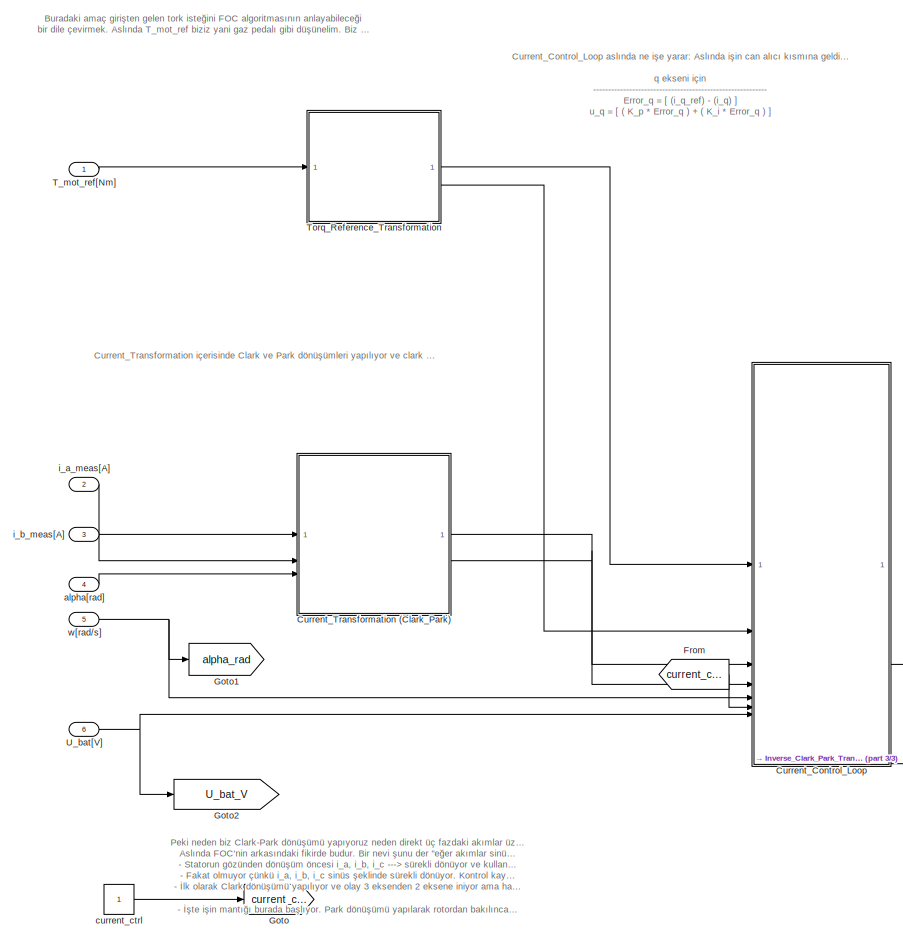
[diagram: root canvas - part 1/3, center side, full height]
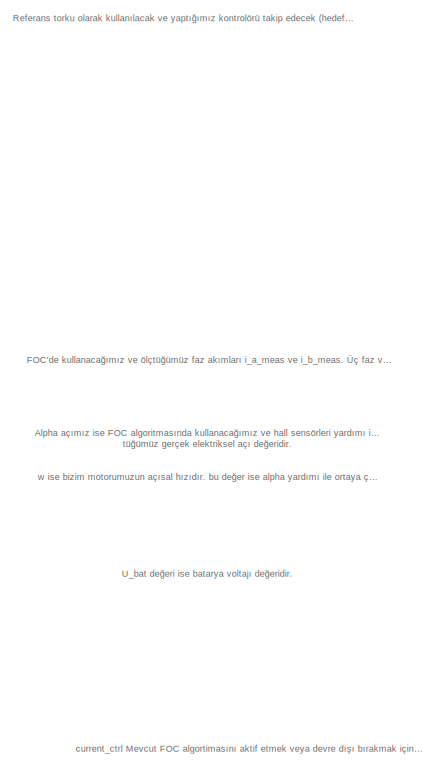
[diagram: root canvas - part 2/3, middle left region]
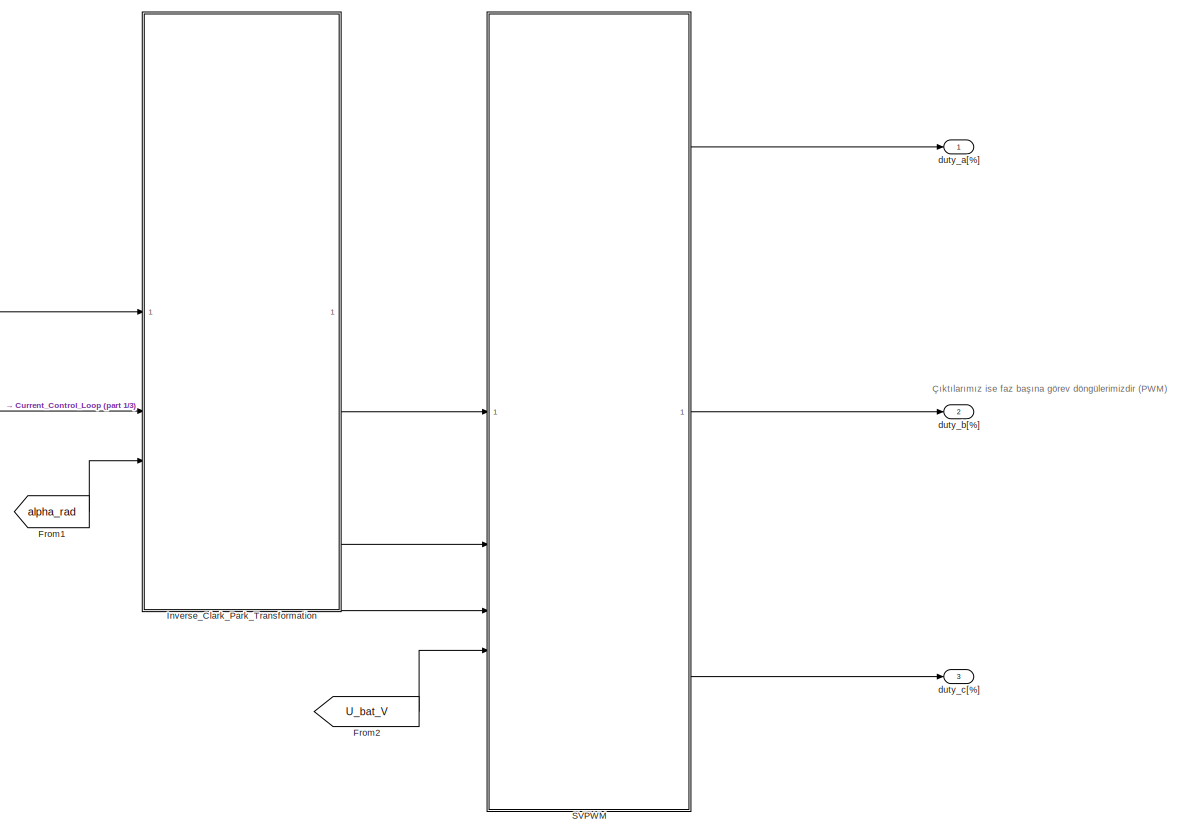
[diagram: root canvas - part 3/3, middle right region]
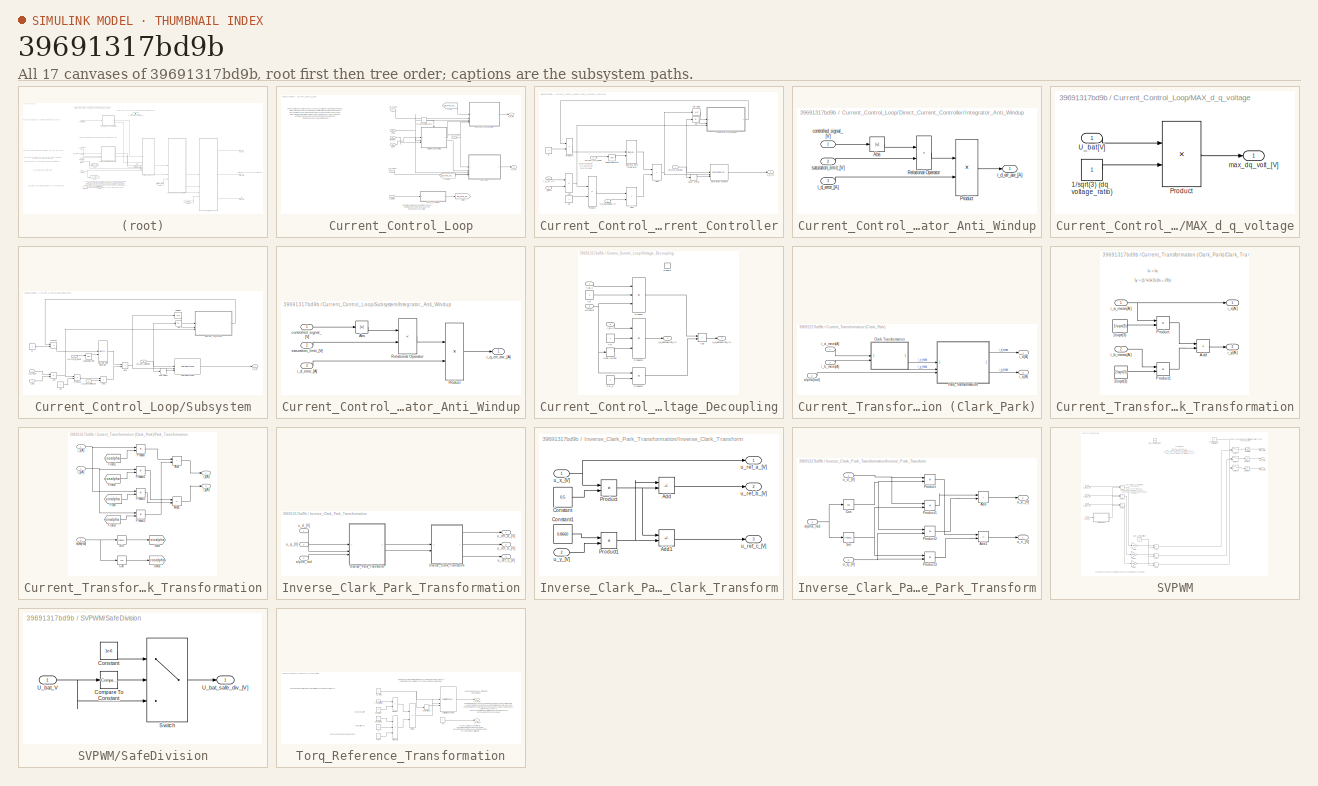
[diagram: thumbnail index - all 17 canvases of the model, root first then tree order]
MODEL slx_39691317bd9b
KIND model
CONFIG AbsTol = auto
CONFIG EnableMultiTasking = off
CONFIG FixedStep = auto
CONFIG MaxStep = auto
CONFIG MinStep = auto
CONFIG RelTol = 1e-3
CONFIG SampleTimeConstraint = Unconstrained
CONFIG SolverName = VariableStepAuto
CONFIG StartTime = 0.0
CONFIG StopTime = 10.0
BLOCK [SubSystem] Current_Control_Loop
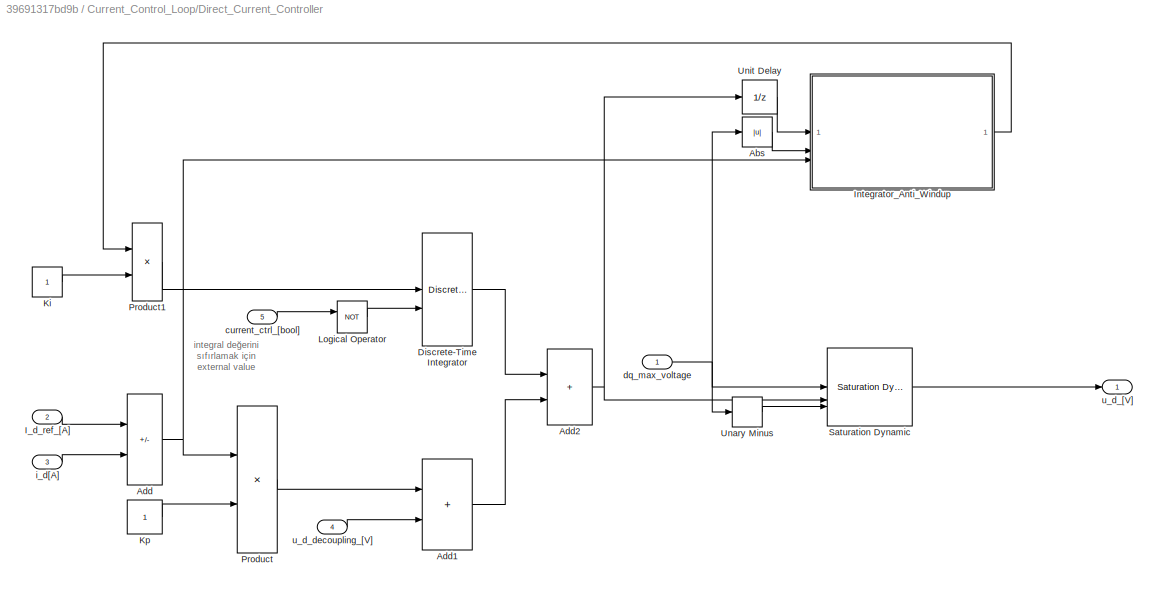
BLOCK [SubSystem] Current_Control_Loop/Direct_Current_Controller
BLOCK [Abs] Current_Control_Loop/Direct_Current_Controller/Abs
  SaturateOnIntegerOverflow = off
BLOCK [Sum] Current_Control_Loop/Direct_Current_Controller/Add
  IconShape = rectangular
  Inputs = +-
BLOCK [Sum] Current_Control_Loop/Direct_Current_Controller/Add1
  IconShape = rectangular
BLOCK [Sum] Current_Control_Loop/Direct_Current_Controller/Add2
  IconShape = rectangular
BLOCK [DiscreteIntegrator] Current_Control_Loop/Direct_Current_Controller/Discrete-Time Integrator
  ExternalReset = level
  ICPrevOutput = DiscIntNeverNeededParam
  ICPrevScaledInput = DiscIntNeverNeededParam
  InitialConditionSetting = Auto
  SampleTime = -1
BLOCK [Inport] Current_Control_Loop/Direct_Current_Controller/I_d_ref_[A]
  Port = 2
BLOCK [SubSystem] Current_Control_Loop/Direct_Current_Controller/Integrator_Anti_Windup
BLOCK [Abs] Current_Control_Loop/Direct_Current_Controller/Integrator_Anti_Windup/Abs
  SaturateOnIntegerOverflow = off
BLOCK [Product] Current_Control_Loop/Direct_Current_Controller/Integrator_Anti_Windup/Product
BLOCK [RelationalOperator] Current_Control_Loop/Direct_Current_Controller/Integrator_Anti_Windup/Relational Operator
  InputSameDT = off
  Operator = <
  OutDataTypeStr = boolean
  RndMeth = Simplest
BLOCK [Inport] Current_Control_Loop/Direct_Current_Controller/Integrator_Anti_Windup/controlled_signal_[V]
BLOCK [Outport] Current_Control_Loop/Direct_Current_Controller/Integrator_Anti_Windup/i_d_err_aw_[A]
BLOCK [Inport] Current_Control_Loop/Direct_Current_Controller/Integrator_Anti_Windup/i_d_error_[A]
  Port = 3
BLOCK [Inport] Current_Control_Loop/Direct_Current_Controller/Integrator_Anti_Windup/saturation_limit_[V]
  Port = 2
BLOCK [Constant] Current_Control_Loop/Direct_Current_Controller/Ki
BLOCK [Constant] Current_Control_Loop/Direct_Current_Controller/Kp
BLOCK [Logic] Current_Control_Loop/Direct_Current_Controller/Logical Operator
  AllPortsSameDT = off
  Operator = NOT
  OutDataTypeStr = boolean
BLOCK [Product] Current_Control_Loop/Direct_Current_Controller/Product
BLOCK [Product] Current_Control_Loop/Direct_Current_Controller/Product1
BLOCK [Reference] Current_Control_Loop/Direct_Current_Controller/Saturation Dynamic  REF=simulink/Discontinuities/Saturation
Dynamic
  SourceBlock = simulink/Discontinuities/Saturation\nDynamic
  SourceType = Saturation Dynamic
BLOCK [UnaryMinus] Current_Control_Loop/Direct_Current_Controller/Unary Minus
BLOCK [UnitDelay] Current_Control_Loop/Direct_Current_Controller/Unit Delay
  HasFrameUpgradeWarning = on
  SampleTime = -1
BLOCK [Inport] Current_Control_Loop/Direct_Current_Controller/current_ctrl_[bool]
  Port = 5
BLOCK [Inport] Current_Control_Loop/Direct_Current_Controller/dq_max_voltage
BLOCK [Inport] Current_Control_Loop/Direct_Current_Controller/i_d[A]
  Port = 3
BLOCK [Outport] Current_Control_Loop/Direct_Current_Controller/u_d_[V]
BLOCK [Inport] Current_Control_Loop/Direct_Current_Controller/u_d_decoupling_[V]
  Port = 4
BLOCK [From] Current_Control_Loop/From
  GotoTag = dq_max_voltage
BLOCK [From] Current_Control_Loop/From1
  GotoTag = dq_max_voltage
BLOCK [Goto] Current_Control_Loop/Goto
  GotoTag = dq_max_voltage
BLOCK [Inport] Current_Control_Loop/I_d_ref_[A]
BLOCK [SubSystem] Current_Control_Loop/MAX_d_q_voltage
BLOCK [Constant] Current_Control_Loop/MAX_d_q_voltage/1//sqrt(3) (dq_voltage_ratio)
BLOCK [Product] Current_Control_Loop/MAX_d_q_voltage/Product
BLOCK [Inport] Current_Control_Loop/MAX_d_q_voltage/U_bat[V]
BLOCK [Outport] Current_Control_Loop/MAX_d_q_voltage/max_dq_volt_[V]
BLOCK [SubSystem] Current_Control_Loop/Subsystem
BLOCK [Abs] Current_Control_Loop/Subsystem/Abs
  SaturateOnIntegerOverflow = off
BLOCK [Sum] Current_Control_Loop/Subsystem/Add
  IconShape = rectangular
  Inputs = +-
BLOCK [Sum] Current_Control_Loop/Subsystem/Add1
  IconShape = rectangular
BLOCK [Sum] Current_Control_Loop/Subsystem/Add2
  IconShape = rectangular
BLOCK [DiscreteIntegrator] Current_Control_Loop/Subsystem/Discrete-Time Integrator
  ExternalReset = level
  ICPrevOutput = DiscIntNeverNeededParam
  ICPrevScaledInput = DiscIntNeverNeededParam
  InitialConditionSetting = Auto
  SampleTime = -1
BLOCK [SubSystem] Current_Control_Loop/Subsystem/Integrator_Anti_Windup
BLOCK [Abs] Current_Control_Loop/Subsystem/Integrator_Anti_Windup/Abs
  SaturateOnIntegerOverflow = off
BLOCK [Product] Current_Control_Loop/Subsystem/Integrator_Anti_Windup/Product
BLOCK [RelationalOperator] Current_Control_Loop/Subsystem/Integrator_Anti_Windup/Relational Operator
  InputSameDT = off
  Operator = <
  OutDataTypeStr = boolean
  RndMeth = Simplest
BLOCK [Inport] Current_Control_Loop/Subsystem/Integrator_Anti_Windup/controlled_signal_[V]
BLOCK [Inport] Current_Control_Loop/Subsystem/Integrator_Anti_Windup/i_d_error_[A]
  Port = 3
BLOCK [Outport] Current_Control_Loop/Subsystem/Integrator_Anti_Windup/i_q_err_aw_[A]
BLOCK [Inport] Current_Control_Loop/Subsystem/Integrator_Anti_Windup/saturation_limit_[V]
  Port = 2
BLOCK [Constant] Current_Control_Loop/Subsystem/Ki
BLOCK [Constant] Current_Control_Loop/Subsystem/Kp
BLOCK [Logic] Current_Control_Loop/Subsystem/Logical Operator
  AllPortsSameDT = off
  Operator = NOT
  OutDataTypeStr = boolean
BLOCK [Product] Current_Control_Loop/Subsystem/Product
BLOCK [Product] Current_Control_Loop/Subsystem/Product1
BLOCK [Reference] Current_Control_Loop/Subsystem/Saturation Dynamic  REF=simulink/Discontinuities/Saturation
Dynamic
  SourceBlock = simulink/Discontinuities/Saturation\nDynamic
  SourceType = Saturation Dynamic
BLOCK [UnaryMinus] Current_Control_Loop/Subsystem/Unary Minus
BLOCK [UnitDelay] Current_Control_Loop/Subsystem/Unit Delay
  HasFrameUpgradeWarning = on
  SampleTime = -1
BLOCK [Inport] Current_Control_Loop/Subsystem/current_ctrl_[bool]
BLOCK [Inport] Current_Control_Loop/Subsystem/dq_max_voltage[V]
  Port = 5
BLOCK [Inport] Current_Control_Loop/Subsystem/i_q[A]
  Port = 3
BLOCK [Inport] Current_Control_Loop/Subsystem/i_q_ref_[A]
  Port = 4
BLOCK [Outport] Current_Control_Loop/Subsystem/u_q_[V]
BLOCK [Inport] Current_Control_Loop/Subsystem/u_q_decoupling_[V]
  Port = 2
BLOCK [Inport] Current_Control_Loop/U_bat[V]
  Port = 7
BLOCK [SubSystem] Current_Control_Loop/Voltage_Decoupling
BLOCK [Sum] Current_Control_Loop/Voltage_Decoupling/Add
  IconShape = rectangular
BLOCK [EnablePort] Current_Control_Loop/Voltage_Decoupling/Enable
BLOCK [Constant] Current_Control_Loop/Voltage_Decoupling/L_d
BLOCK [Constant] Current_Control_Loop/Voltage_Decoupling/L_q
BLOCK [Product] Current_Control_Loop/Voltage_Decoupling/Product
  Inputs = 3
BLOCK [Product] Current_Control_Loop/Voltage_Decoupling/Product1
  Inputs = 3
BLOCK [Product] Current_Control_Loop/Voltage_Decoupling/Product2
BLOCK [Constant] Current_Control_Loop/Voltage_Decoupling/Psi_p
BLOCK [UnaryMinus] Current_Control_Loop/Voltage_Decoupling/Unary Minus
BLOCK [Inport] Current_Control_Loop/Voltage_Decoupling/i_d[A]
BLOCK [Inport] Current_Control_Loop/Voltage_Decoupling/i_q[A]
  Port = 2
BLOCK [Outport] Current_Control_Loop/Voltage_Decoupling/u_d_decoupling_[V]
BLOCK [Outport] Current_Control_Loop/Voltage_Decoupling/u_q_decoupling_[V]
  Port = 2
BLOCK [Inport] Current_Control_Loop/Voltage_Decoupling/w[rad//s]
  Port = 3
BLOCK [Inport] Current_Control_Loop/current_ctrl_[bool]
  Port = 6
BLOCK [Constant] Current_Control_Loop/dc_decoupling_ena
BLOCK [Inport] Current_Control_Loop/i_d[A]
  Port = 3
BLOCK [Inport] Current_Control_Loop/i_q[A]
  Port = 4
BLOCK [Inport] Current_Control_Loop/i_q_ref_[A]
  Port = 2
BLOCK [Outport] Current_Control_Loop/u_d_[V]
BLOCK [Outport] Current_Control_Loop/u_q_[V]
  Port = 2
BLOCK [Inport] Current_Control_Loop/w[rad//s]
  Port = 5
BLOCK [SubSystem] Current_Transformation (Clark_Park)
  NameLocation = top
BLOCK [SubSystem] Current_Transformation (Clark_Park)/Clark_Transformation
BLOCK [Constant] Current_Transformation (Clark_Park)/Clark_Transformation/1//sqrt(3)
  OutDataTypeStr = single
  Value = 1/sqrt(3)
BLOCK [Constant] Current_Transformation (Clark_Park)/Clark_Transformation/2//sqrt(3)
  OutDataTypeStr = single
  Value = 2/sqrt(3)
BLOCK [Sum] Current_Transformation (Clark_Park)/Clark_Transformation/Add
  IconShape = rectangular
BLOCK [Product] Current_Transformation (Clark_Park)/Clark_Transformation/Product
BLOCK [Product] Current_Transformation (Clark_Park)/Clark_Transformation/Product1
BLOCK [Inport] Current_Transformation (Clark_Park)/Clark_Transformation/i_a_meas[A]
BLOCK [Inport] Current_Transformation (Clark_Park)/Clark_Transformation/i_b_meas[A]
  Port = 2
BLOCK [Outport] Current_Transformation (Clark_Park)/Clark_Transformation/i_x[A]
BLOCK [Outport] Current_Transformation (Clark_Park)/Clark_Transformation/i_y[A]
  Port = 2
BLOCK [SubSystem] Current_Transformation (Clark_Park)/Park_Transformation
BLOCK [Sum] Current_Transformation (Clark_Park)/Park_Transformation/Add
  IconShape = rectangular
BLOCK [Sum] Current_Transformation (Clark_Park)/Park_Transformation/Add1
  IconShape = rectangular
  Inputs = +-
BLOCK [Trigonometry] Current_Transformation (Clark_Park)/Park_Transformation/Cos
  Operator = cos
BLOCK [From] Current_Transformation (Clark_Park)/Park_Transformation/From
  GotoTag = sinalpha
BLOCK [From] Current_Transformation (Clark_Park)/Park_Transformation/From1
  GotoTag = cosalpha
BLOCK [From] Current_Transformation (Clark_Park)/Park_Transformation/From2
  GotoTag = cosalpha
BLOCK [From] Current_Transformation (Clark_Park)/Park_Transformation/From3
  GotoTag = sinalpha
BLOCK [Goto] Current_Transformation (Clark_Park)/Park_Transformation/Goto
  GotoTag = sinalpha
BLOCK [Goto] Current_Transformation (Clark_Park)/Park_Transformation/Goto1
  GotoTag = cosalpha
BLOCK [Product] Current_Transformation (Clark_Park)/Park_Transformation/Product
BLOCK [Product] Current_Transformation (Clark_Park)/Park_Transformation/Product1
BLOCK [Product] Current_Transformation (Clark_Park)/Park_Transformation/Product2
BLOCK [Product] Current_Transformation (Clark_Park)/Park_Transformation/Product3
BLOCK [Trigonometry] Current_Transformation (Clark_Park)/Park_Transformation/Sin
BLOCK [Inport] Current_Transformation (Clark_Park)/Park_Transformation/alpha[rad]
  Port = 3
BLOCK [Outport] Current_Transformation (Clark_Park)/Park_Transformation/i_d[A]
BLOCK [Outport] Current_Transformation (Clark_Park)/Park_Transformation/i_q[A]
  Port = 2
BLOCK [Inport] Current_Transformation (Clark_Park)/Park_Transformation/i_x[A]
BLOCK [Inport] Current_Transformation (Clark_Park)/Park_Transformation/i_y[A]
  Port = 2
BLOCK [Inport] Current_Transformation (Clark_Park)/alpha[rad]
  Port = 3
BLOCK [Inport] Current_Transformation (Clark_Park)/i_a_meas[A]
BLOCK [Inport] Current_Transformation (Clark_Park)/i_b_meas[A]
  Port = 2
BLOCK [Outport] Current_Transformation (Clark_Park)/i_d[A]
BLOCK [Outport] Current_Transformation (Clark_Park)/i_q[A]
  Port = 2
BLOCK [From] From
  GotoTag = current_ctrl
BLOCK [From] From1
  GotoTag = alpha_rad
BLOCK [From] From2
  GotoTag = U_bat_V
BLOCK [Goto] Goto
  GotoTag = current_ctrl
BLOCK [Goto] Goto1
  GotoTag = alpha_rad
BLOCK [Goto] Goto2
  GotoTag = U_bat_V
BLOCK [SubSystem] Inverse_Clark_Park_Transformation
BLOCK [SubSystem] Inverse_Clark_Park_Transformation/Inverse_Clark_Transform
BLOCK [Sum] Inverse_Clark_Park_Transformation/Inverse_Clark_Transform/Add
  IconShape = rectangular
  Inputs = +-
BLOCK [Sum] Inverse_Clark_Park_Transformation/Inverse_Clark_Transform/Add1
  IconShape = rectangular
  Inputs = --
BLOCK [Constant] Inverse_Clark_Park_Transformation/Inverse_Clark_Transform/Constant
  Value = 0.5
BLOCK [Constant] Inverse_Clark_Park_Transformation/Inverse_Clark_Transform/Constant1
  Value = 0.8660
BLOCK [Product] Inverse_Clark_Park_Transformation/Inverse_Clark_Transform/Product
BLOCK [Product] Inverse_Clark_Park_Transformation/Inverse_Clark_Transform/Product1
BLOCK [Outport] Inverse_Clark_Park_Transformation/Inverse_Clark_Transform/u_ref_a_[V]
BLOCK [Outport] Inverse_Clark_Park_Transformation/Inverse_Clark_Transform/u_ref_b_[V]
  Port = 2
BLOCK [Outport] Inverse_Clark_Park_Transformation/Inverse_Clark_Transform/u_ref_c_[V]
  Port = 3
BLOCK [Inport] Inverse_Clark_Park_Transformation/Inverse_Clark_Transform/u_x_[V]
BLOCK [Inport] Inverse_Clark_Park_Transformation/Inverse_Clark_Transform/u_y_[V]
  Port = 2
BLOCK [SubSystem] Inverse_Clark_Park_Transformation/Inverse_Park_Transform
BLOCK [Sum] Inverse_Clark_Park_Transformation/Inverse_Park_Transform/Add
  IconShape = rectangular
BLOCK [Sum] Inverse_Clark_Park_Transformation/Inverse_Park_Transform/Add1
  IconShape = rectangular
  Inputs = +-
BLOCK [Trigonometry] Inverse_Clark_Park_Transformation/Inverse_Park_Transform/Cos
  Operator = cos
BLOCK [Product] Inverse_Clark_Park_Transformation/Inverse_Park_Transform/Product
BLOCK [Product] Inverse_Clark_Park_Transformation/Inverse_Park_Transform/Product1
BLOCK [Product] Inverse_Clark_Park_Transformation/Inverse_Park_Transform/Product2
BLOCK [Product] Inverse_Clark_Park_Transformation/Inverse_Park_Transform/Product3
BLOCK [Trigonometry] Inverse_Clark_Park_Transformation/Inverse_Park_Transform/Sin
BLOCK [Inport] Inverse_Clark_Park_Transformation/Inverse_Park_Transform/alpha_rad
  Port = 3
BLOCK [Inport] Inverse_Clark_Park_Transformation/Inverse_Park_Transform/u_d_[V]
BLOCK [Inport] Inverse_Clark_Park_Transformation/Inverse_Park_Transform/u_q_[V]
  Port = 2
BLOCK [Outport] Inverse_Clark_Park_Transformation/Inverse_Park_Transform/u_x_[V]
BLOCK [Outport] Inverse_Clark_Park_Transformation/Inverse_Park_Transform/u_y_[V]
  Port = 2
BLOCK [Inport] Inverse_Clark_Park_Transformation/alpha_rad
  Port = 3
BLOCK [Inport] Inverse_Clark_Park_Transformation/u_d_[V]
BLOCK [Inport] Inverse_Clark_Park_Transformation/u_q_[V]
  Port = 2
BLOCK [Outport] Inverse_Clark_Park_Transformation/u_ref_a_[V]
BLOCK [Outport] Inverse_Clark_Park_Transformation/u_ref_b_[V]
  Port = 2
BLOCK [Outport] Inverse_Clark_Park_Transformation/u_ref_c_[V]
  Port = 3
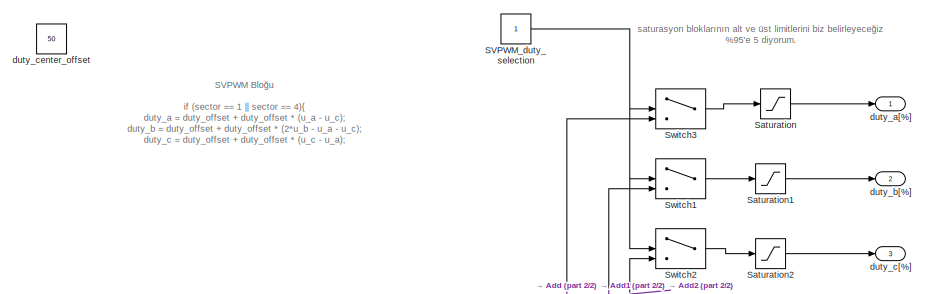
[diagram: SVPWM - part 1/2, top right region]
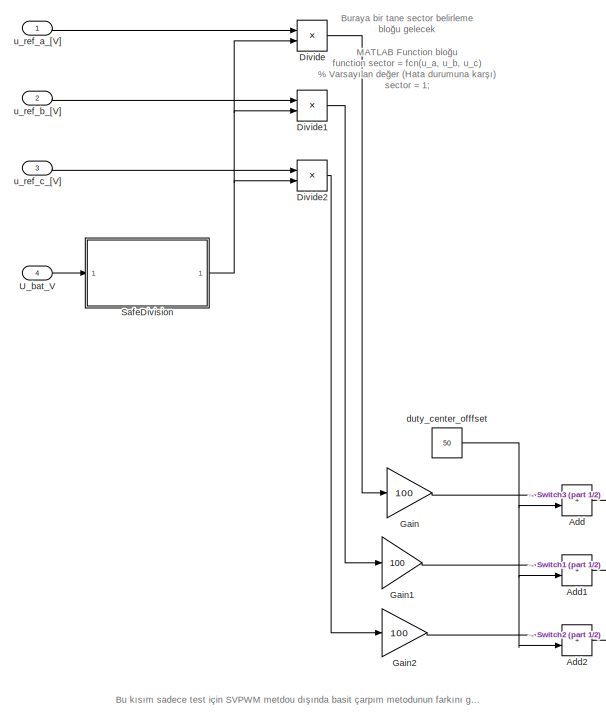
[diagram: SVPWM - part 2/2, bottom left region]
BLOCK [SubSystem] SVPWM
BLOCK [Sum] SVPWM/Add
  IconShape = rectangular
BLOCK [Sum] SVPWM/Add1
  IconShape = rectangular
BLOCK [Sum] SVPWM/Add2
  IconShape = rectangular
BLOCK [Product] SVPWM/Divide
  Inputs = */
BLOCK [Product] SVPWM/Divide1
  Inputs = */
BLOCK [Product] SVPWM/Divide2
  Inputs = */
BLOCK [Gain] SVPWM/Gain
  Gain = 100
  OutDataTypeStr = single
BLOCK [Gain] SVPWM/Gain1
  Gain = 100
  OutDataTypeStr = single
BLOCK [Gain] SVPWM/Gain2
  Gain = 100
  OutDataTypeStr = single
BLOCK [Constant] SVPWM/SVPWM_duty_selection
  OutDataTypeStr = boolean
BLOCK [SubSystem] SVPWM/SafeDivision
BLOCK [Reference] SVPWM/SafeDivision/Compare To Constant  REF=simulink/Logic and Bit
Operations/Compare
To Constant
  SourceBlock = simulink/Logic and Bit\nOperations/Compare\nTo Constant
  SourceType = Compare To Constant
BLOCK [Constant] SVPWM/SafeDivision/Constant
  Value = 1e-6
BLOCK [Switch] SVPWM/SafeDivision/Switch
  Criteria = u2 ~= 0
  InputSameDT = off
  SaturateOnIntegerOverflow = off
BLOCK [Inport] SVPWM/SafeDivision/U_bat_V
BLOCK [Outport] SVPWM/SafeDivision/U_bat_safe_div_[V]
BLOCK [Saturate] SVPWM/Saturation
  LowerLimit = 5
  UpperLimit = 95
BLOCK [Saturate] SVPWM/Saturation1
  LowerLimit = 5
  UpperLimit = 95
BLOCK [Saturate] SVPWM/Saturation2
  LowerLimit = 5
  UpperLimit = 95
BLOCK [Switch] SVPWM/Switch1
  Criteria = u2 ~= 0
  InputSameDT = off
  SaturateOnIntegerOverflow = off
BLOCK [Switch] SVPWM/Switch2
  Criteria = u2 ~= 0
  InputSameDT = off
  SaturateOnIntegerOverflow = off
BLOCK [Switch] SVPWM/Switch3
  Criteria = u2 ~= 0
  InputSameDT = off
  SaturateOnIntegerOverflow = off
BLOCK [Inport] SVPWM/U_bat_V
  Port = 4
BLOCK [Outport] SVPWM/duty_a[%]
BLOCK [Outport] SVPWM/duty_b[%]
  Port = 2
BLOCK [Outport] SVPWM/duty_c[%]
  Port = 3
BLOCK [Constant] SVPWM/duty_center_offfset
  OutDataTypeStr = single
  Value = 50
BLOCK [Constant] SVPWM/duty_center_offset
  OutDataTypeStr = single
  Value = 50
BLOCK [Inport] SVPWM/u_ref_a_[V]
BLOCK [Inport] SVPWM/u_ref_b_[V]
  Port = 2
BLOCK [Inport] SVPWM/u_ref_c_[V]
  Port = 3
BLOCK [Inport] T_mot_ref[Nm]
BLOCK [SubSystem] Torq_Reference_Transformation
BLOCK [Constant] Torq_Reference_Transformation/Constant
  OutDataTypeStr = single
  Value = 2
BLOCK [Constant] Torq_Reference_Transformation/Constant1
  OutDataTypeStr = single
  Value = 3
BLOCK [Product] Torq_Reference_Transformation/Divide
  Inputs = */
BLOCK [Outport] Torq_Reference_Transformation/I_d_ref_[A]
BLOCK [Constant] Torq_Reference_Transformation/I_s_max
BLOCK [Product] Torq_Reference_Transformation/Product
BLOCK [Product] Torq_Reference_Transformation/Product1
  Inputs = 3
BLOCK [Constant] Torq_Reference_Transformation/Psi_p
BLOCK [Reference] Torq_Reference_Transformation/Saturation Dynamic  REF=simulink/Discontinuities/Saturation
Dynamic
  SourceBlock = simulink/Discontinuities/Saturation\nDynamic
  SourceType = Saturation Dynamic
BLOCK [Inport] Torq_Reference_Transformation/T_mot_ref[Nm]
BLOCK [UnaryMinus] Torq_Reference_Transformation/Unary Minus
BLOCK [Constant] Torq_Reference_Transformation/i_d
  OutDataTypeStr = single
  Value = 0
BLOCK [Outport] Torq_Reference_Transformation/i_q_ref_[A]
  Port = 2
BLOCK [Constant] Torq_Reference_Transformation/p
BLOCK [Inport] U_bat[V]
  Port = 6
BLOCK [Inport] alpha[rad]
  Port = 4
BLOCK [Constant] current_ctrl
BLOCK [Outport] duty_a[%]
BLOCK [Outport] duty_b[%]
  Port = 2
BLOCK [Outport] duty_c[%]
  Port = 3
BLOCK [Inport] i_a_meas[A]
  Port = 2
BLOCK [Inport] i_b_meas[A]
  Port = 3
BLOCK [Inport] w[rad//s]
  Port = 5
ANNOTATION (root): Alpha açımız ise FOC algoritmasında kullanacağımız ve hall sensörleri yardımı ile ölç- tüğümüz gerçek elektriksel açı değeridir.
ANNOTATION (root): Buradaki amaç girişten gelen tork isteğini FOC algoritmasının anlayabileceği bir dile çevirmek. Aslında T_mot_ref biziz yani gaz pedalı gibi düşünelim. Biz T_mot_ref olarak bana X Nm tork sağla diyoruz. Burada FOC X Nm diye bir kavram anlayamaz bu yüzden biz bu değeri FOC algortimasının anlayabilceği bir dile çevireceğiz yani bobinlere vermem gereken akım değerlerine. Çünkü FOC X Nm bilmez I_d, I_...<+8ch>
ANNOTATION (root): Current_Control_Loop aslında ne işe yarar: Aslında işin can alıcı kısmına geldik diyebiliriz. Sebebi ise bu subsytem akımları kontrol eder. Bunu ise bizim istediğimiz referans akımları (i_d_ref, i_q_ref) ile o an ki akımları (i_q, i_d) karşılaştırarak (i_dr_ref - i_d) sonuca getirir. Eğer kullanıcı 5A istiyorsa ve o an motorların çektiği akım 2A ise aradaki 3A fark için aksiyon alınır. Bu aradaki ...<+833ch>
ANNOTATION (root): Current_Transformation içerisinde Clark ve Park dönüşümleri yapılıyor ve clark dönüşümleri için faz akım değerleri park dönüşümü için ise hem faz akım değerleri hemde gerçek elektriksel açı değeri giriş yapıyor ve 3 faz akım değerleri birbirini takip eden 2 eksen açı değerine indirgendi.
ANNOTATION (root): FOC'de kullanacağımız ve ölçtüğümüz faz akımları i_a_meas ve i_b_meas. Üç faz var ve iki tane ölçüm var bunun sebebi ise Kirchoff ile 3. akımı bulabiliyor olmamız.
ANNOTATION (root): Peki neden biz Clark-Park dönüşümü yapıyoruz neden direkt üç fazdaki akımlar üzerinden gitmiyoruz. Sorun PID kontrolörün AC sinyallerden hoşlanmaması. PID kontrolör ne kadar işimize çok yarasa bile asla ve asla sürekli değişen sinayelleri kontrol etmek istemez. Motor hızlandıkça ise bu hata büyür ve kontrol kaybedilir. Bizimde bu yüzden bu sürekli değişen AC akımları DC düzeye indirgememiz gerekir...<+1041ch>
ANNOTATION (root): Referans torku olarak kullanılacak ve yaptığımız kontrolörü takip edecek (hedef tork)
ANNOTATION (root): U_bat değeri ise batarya voltajı değeridir.
ANNOTATION (root): current_ctrl Mevcut FOC algortimasını aktif etmek veya devre dışı bırakmak için kullanılacak.
ANNOTATION (root): w ise bizim motorumuzun açısal hızıdır. bu değer ise alpha yardımı ile ortaya çıkıyor.
ANNOTATION (root): Çıktılarımız ise faz başına görev döngülerimizdir (PWM)
ANNOTATION Current_Control_Loop: Bu işlemin yapılmasının sebebi motorumuzun 3 fazlı olmasından dolayı kök 3 değerine bölünmesi gerekir voltajın.
ANNOTATION Current_Control_Loop: Neden volatge decoupling yapıyoruz? Burada voltajları ayrıştırmamızın sebebi aslında matematiksel olarak olayı çözmemiz ama fizik kurallarının bize dur demesi. Biz Clark ve Park dönüşümü yaparak d ve q eksenlerini elde ettik ama d ve q eksenleri birbirini etkileyen iki eksendir. Biri değişince diğeri bozulur. Motor hızlandıkça ve tork üretmek için i_q akımı bastıkça bobinlerin endüktansı yüzünden ...<+768ch>
ANNOTATION Current_Control_Loop/Direct_Current_Controller: integral değerini sıfırlamak için external value
ANNOTATION Current_Transformation (Clark_Park)/Clark_Transformation: İx = İa İy = (1/ kök3) (İa + 2İb)
ANNOTATION SVPWM: Bu kısım sadece test için SVPWM metdou dışında basit çarpım metodunun farkını görmek için.
ANNOTATION SVPWM: Buraya bir tane sector belirleme bloğu gelecek MATLAB Function bloğu function sector = fcn(u_a, u_b, u_c) % Varsayılan değer (Hata durumuna karşı) sector = 1; if u_a >= u_b % Üst kol (Görseldeki 1. ok yönü) if u_c >= u_a sector = 5; elseif u_c >= u_b sector = 6; else sector = 1; end else % Alt kol (Görseldeki 2. ok yönü: u_a = u_b sector = 2; elseif u_a >= u_c sector = 3; else sector = 4; end end ...<+3ch>
ANNOTATION SVPWM: SVPWM Bloğu if (sector == 1 || sector == 4){ duty_a = duty_offset + duty_offset * (u_a - u_c); duty_b = duty_offset + duty_offset * (2*u_b - u_a - u_c); duty_c = duty_offset + duty_offset * (u_c - u_a); } if(sector == 2|| sector== 5){ duty_a = duty_offset + duty_offset * (2*u_a - u_b - u_c); duty_b = duty_offset + duty_offset * (u_b - u_c); duty_c = duty_offset + duty_offset * (u_c - u_b); } if(se...<+186ch>
ANNOTATION SVPWM: saturasyon bloklarının alt ve üst limitlerini biz belirleyeceğiz %95'e 5 diyorum.
ANNOTATION Torq_Reference_Transformation: Fakat i_d_ref 'miz ise akı akımımızdır. Bu akım, mıknatısın tam üzerine binen akımdır. Bu akım motoru döndürmez, sadece motoru mıknatıslar (veya mıknatısını zayıflatır) ve ısıtır .
ANNOTATION Torq_Reference_Transformation: Flux Linkage - Mıknatıs Akı Halkalanması
ANNOTATION Torq_Reference_Transformation: Maksimum Stator Akımı: Bu bir güvenlik sınırıdır. Sürücünün (MOSFET'lerin) veya motorun yanmadan dayanabileceği maksimum akım değeridir.
ANNOTATION Torq_Reference_Transformation: Aslında bizim buradaki i_q_ref 'miz bizim tork akımımızdır.
ANNOTATION Torq_Reference_Transformation: Burada güvenlik için sınırlandırma bloğu koymamız gerekiyordu. Aslında i_q akımını statorun max akımı ile ters yöndeki max akımı arasıda sınırlandırdık.
ANNOTATION Torq_Reference_Transformation: Denklem sabitleri
ANNOTATION Torq_Reference_Transformation: Kutup çifti sayısı
ANNOTATION Torq_Reference_Transformation: NOT: Bizim motorumuz zaten BLDC motor olduğu için içinde zaten sabit mıknatıslar var. Asenkron motorlarda bu durum böyle değildir yani rotorun içinde mıknatıs yoktur. Bu yüz-den i_d gönderip önce bir manyetik alan yaratmak zorundasındır. Ama bizim motorumuzda mıknatıs zaten olduğu için manyetik alan yaratmak için ekstra enerji harcamaya gerek yok. Aslında FOC algortimasının verimli olmasının sebeb...<+52ch>
LINE Current_Control_Loop/Direct_Current_Controller/Abs:1 -> Current_Control_Loop/Direct_Current_Controller/Integrator_Anti_Windup:2
LINE Current_Control_Loop/Direct_Current_Controller/Add1:1 -> Current_Control_Loop/Direct_Current_Controller/Add2:2
NET Current_Control_Loop/Direct_Current_Controller/Add2:1 -> Current_Control_Loop/Direct_Current_Controller/Saturation Dynamic:2, Current_Control_Loop/Direct_Current_Controller/Unit Delay:1
NET Current_Control_Loop/Direct_Current_Controller/Add:1 -> Current_Control_Loop/Direct_Current_Controller/Integrator_Anti_Windup:3, Current_Control_Loop/Direct_Current_Controller/Product:1
LINE Current_Control_Loop/Direct_Current_Controller/Discrete-Time Integrator:1 -> Current_Control_Loop/Direct_Current_Controller/Add2:1
LINE Current_Control_Loop/Direct_Current_Controller/I_d_ref_[A]:1 -> Current_Control_Loop/Direct_Current_Controller/Add:1
LINE Current_Control_Loop/Direct_Current_Controller/Integrator_Anti_Windup/Abs:1 -> Current_Control_Loop/Direct_Current_Controller/Integrator_Anti_Windup/Relational Operator:1
LINE Current_Control_Loop/Direct_Current_Controller/Integrator_Anti_Windup/Product:1 -> Current_Control_Loop/Direct_Current_Controller/Integrator_Anti_Windup/i_d_err_aw_[A]:1
LINE Current_Control_Loop/Direct_Current_Controller/Integrator_Anti_Windup/Relational Operator:1 -> Current_Control_Loop/Direct_Current_Controller/Integrator_Anti_Windup/Product:1
LINE Current_Control_Loop/Direct_Current_Controller/Integrator_Anti_Windup/controlled_signal_[V]:1 -> Current_Control_Loop/Direct_Current_Controller/Integrator_Anti_Windup/Abs:1
LINE Current_Control_Loop/Direct_Current_Controller/Integrator_Anti_Windup/i_d_error_[A]:1 -> Current_Control_Loop/Direct_Current_Controller/Integrator_Anti_Windup/Product:2
LINE Current_Control_Loop/Direct_Current_Controller/Integrator_Anti_Windup/saturation_limit_[V]:1 -> Current_Control_Loop/Direct_Current_Controller/Integrator_Anti_Windup/Relational Operator:2
LINE Current_Control_Loop/Direct_Current_Controller/Integrator_Anti_Windup:1 -> Current_Control_Loop/Direct_Current_Controller/Product1:1
LINE Current_Control_Loop/Direct_Current_Controller/Ki:1 -> Current_Control_Loop/Direct_Current_Controller/Product1:2
LINE Current_Control_Loop/Direct_Current_Controller/Kp:1 -> Current_Control_Loop/Direct_Current_Controller/Product:2
LINE Current_Control_Loop/Direct_Current_Controller/Logical Operator:1 -> Current_Control_Loop/Direct_Current_Controller/Discrete-Time Integrator:2
LINE Current_Control_Loop/Direct_Current_Controller/Product1:1 -> Current_Control_Loop/Direct_Current_Controller/Discrete-Time Integrator:1
LINE Current_Control_Loop/Direct_Current_Controller/Product:1 -> Current_Control_Loop/Direct_Current_Controller/Add1:1
LINE Current_Control_Loop/Direct_Current_Controller/Saturation Dynamic:1 -> Current_Control_Loop/Direct_Current_Controller/u_d_[V]:1
LINE Current_Control_Loop/Direct_Current_Controller/Unary Minus:1 -> Current_Control_Loop/Direct_Current_Controller/Saturation Dynamic:3
LINE Current_Control_Loop/Direct_Current_Controller/Unit Delay:1 -> Current_Control_Loop/Direct_Current_Controller/Integrator_Anti_Windup:1
LINE Current_Control_Loop/Direct_Current_Controller/current_ctrl_[bool]:1 -> Current_Control_Loop/Direct_Current_Controller/Logical Operator:1
NET Current_Control_Loop/Direct_Current_Controller/dq_max_voltage:1 -> Current_Control_Loop/Direct_Current_Controller/Abs:1, Current_Control_Loop/Direct_Current_Controller/Saturation Dynamic:1, Current_Control_Loop/Direct_Current_Controller/Unary Minus:1
LINE Current_Control_Loop/Direct_Current_Controller/i_d[A]:1 -> Current_Control_Loop/Direct_Current_Controller/Add:2
LINE Current_Control_Loop/Direct_Current_Controller/u_d_decoupling_[V]:1 -> Current_Control_Loop/Direct_Current_Controller/Add1:2
LINE Current_Control_Loop/Direct_Current_Controller:1 -> Current_Control_Loop/u_d_[V]:1
LINE Current_Control_Loop/From1:1 -> Current_Control_Loop/Subsystem:5
LINE Current_Control_Loop/From:1 -> Current_Control_Loop/Direct_Current_Controller:1
LINE Current_Control_Loop/I_d_ref_[A]:1 -> Current_Control_Loop/Direct_Current_Controller:2
LINE Current_Control_Loop/MAX_d_q_voltage/1//sqrt(3) (dq_voltage_ratio):1 -> Current_Control_Loop/MAX_d_q_voltage/Product:2
LINE Current_Control_Loop/MAX_d_q_voltage/Product:1 -> Current_Control_Loop/MAX_d_q_voltage/max_dq_volt_[V]:1
LINE Current_Control_Loop/MAX_d_q_voltage/U_bat[V]:1 -> Current_Control_Loop/MAX_d_q_voltage/Product:1
LINE Current_Control_Loop/MAX_d_q_voltage:1 -> Current_Control_Loop/Goto:1
LINE Current_Control_Loop/Subsystem/Abs:1 -> Current_Control_Loop/Subsystem/Integrator_Anti_Windup:2
LINE Current_Control_Loop/Subsystem/Add1:1 -> Current_Control_Loop/Subsystem/Add2:2
NET Current_Control_Loop/Subsystem/Add2:1 -> Current_Control_Loop/Subsystem/Saturation Dynamic:2, Current_Control_Loop/Subsystem/Unit Delay:1
NET Current_Control_Loop/Subsystem/Add:1 -> Current_Control_Loop/Subsystem/Integrator_Anti_Windup:3, Current_Control_Loop/Subsystem/Product1:1
LINE Current_Control_Loop/Subsystem/Discrete-Time Integrator:1 -> Current_Control_Loop/Subsystem/Add2:1
LINE Current_Control_Loop/Subsystem/Integrator_Anti_Windup/Abs:1 -> Current_Control_Loop/Subsystem/Integrator_Anti_Windup/Relational Operator:1
LINE Current_Control_Loop/Subsystem/Integrator_Anti_Windup/Product:1 -> Current_Control_Loop/Subsystem/Integrator_Anti_Windup/i_q_err_aw_[A]:1
LINE Current_Control_Loop/Subsystem/Integrator_Anti_Windup/Relational Operator:1 -> Current_Control_Loop/Subsystem/Integrator_Anti_Windup/Product:1
LINE Current_Control_Loop/Subsystem/Integrator_Anti_Windup/controlled_signal_[V]:1 -> Current_Control_Loop/Subsystem/Integrator_Anti_Windup/Abs:1
LINE Current_Control_Loop/Subsystem/Integrator_Anti_Windup/i_d_error_[A]:1 -> Current_Control_Loop/Subsystem/Integrator_Anti_Windup/Product:2
LINE Current_Control_Loop/Subsystem/Integrator_Anti_Windup/saturation_limit_[V]:1 -> Current_Control_Loop/Subsystem/Integrator_Anti_Windup/Relational Operator:2
LINE Current_Control_Loop/Subsystem/Integrator_Anti_Windup:1 -> Current_Control_Loop/Subsystem/Product:1
LINE Current_Control_Loop/Subsystem/Ki:1 -> Current_Control_Loop/Subsystem/Product:2
LINE Current_Control_Loop/Subsystem/Kp:1 -> Current_Control_Loop/Subsystem/Product1:2
LINE Current_Control_Loop/Subsystem/Logical Operator:1 -> Current_Control_Loop/Subsystem/Discrete-Time Integrator:2
LINE Current_Control_Loop/Subsystem/Product1:1 -> Current_Control_Loop/Subsystem/Add1:1
LINE Current_Control_Loop/Subsystem/Product:1 -> Current_Control_Loop/Subsystem/Discrete-Time Integrator:1
LINE Current_Control_Loop/Subsystem/Saturation Dynamic:1 -> Current_Control_Loop/Subsystem/u_q_[V]:1
LINE Current_Control_Loop/Subsystem/Unary Minus:1 -> Current_Control_Loop/Subsystem/Saturation Dynamic:3
LINE Current_Control_Loop/Subsystem/Unit Delay:1 -> Current_Control_Loop/Subsystem/Integrator_Anti_Windup:1
LINE Current_Control_Loop/Subsystem/current_ctrl_[bool]:1 -> Current_Control_Loop/Subsystem/Logical Operator:1
NET Current_Control_Loop/Subsystem/dq_max_voltage[V]:1 -> Current_Control_Loop/Subsystem/Abs:1, Current_Control_Loop/Subsystem/Saturation Dynamic:1, Current_Control_Loop/Subsystem/Unary Minus:1
LINE Current_Control_Loop/Subsystem/i_q[A]:1 -> Current_Control_Loop/Subsystem/Add:2
LINE Current_Control_Loop/Subsystem/i_q_ref_[A]:1 -> Current_Control_Loop/Subsystem/Add:1
LINE Current_Control_Loop/Subsystem/u_q_decoupling_[V]:1 -> Current_Control_Loop/Subsystem/Add1:2
LINE Current_Control_Loop/Subsystem:1 -> Current_Control_Loop/u_q_[V]:1
LINE Current_Control_Loop/U_bat[V]:1 -> Current_Control_Loop/MAX_d_q_voltage:1
LINE Current_Control_Loop/Voltage_Decoupling/Add:1 -> Current_Control_Loop/Voltage_Decoupling/u_q_decoupling_[V]:1
LINE Current_Control_Loop/Voltage_Decoupling/L_d:1 -> Current_Control_Loop/Voltage_Decoupling/Product:2
LINE Current_Control_Loop/Voltage_Decoupling/L_q:1 -> Current_Control_Loop/Voltage_Decoupling/Product1:2
LINE Current_Control_Loop/Voltage_Decoupling/Product1:1 -> Current_Control_Loop/Voltage_Decoupling/u_d_decoupling_[V]:1
LINE Current_Control_Loop/Voltage_Decoupling/Product2:1 -> Current_Control_Loop/Voltage_Decoupling/Add:2
LINE Current_Control_Loop/Voltage_Decoupling/Product:1 -> Current_Control_Loop/Voltage_Decoupling/Add:1
LINE Current_Control_Loop/Voltage_Decoupling/Psi_p:1 -> Current_Control_Loop/Voltage_Decoupling/Product2:2
LINE Current_Control_Loop/Voltage_Decoupling/Unary Minus:1 -> Current_Control_Loop/Voltage_Decoupling/Product1:3
LINE Current_Control_Loop/Voltage_Decoupling/i_d[A]:1 -> Current_Control_Loop/Voltage_Decoupling/Product:1
LINE Current_Control_Loop/Voltage_Decoupling/i_q[A]:1 -> Current_Control_Loop/Voltage_Decoupling/Product1:1
NET Current_Control_Loop/Voltage_Decoupling/w[rad//s]:1 -> Current_Control_Loop/Voltage_Decoupling/Product2:1, Current_Control_Loop/Voltage_Decoupling/Product:3, Current_Control_Loop/Voltage_Decoupling/Unary Minus:1
LINE Current_Control_Loop/Voltage_Decoupling:1 -> Current_Control_Loop/Direct_Current_Controller:4
LINE Current_Control_Loop/Voltage_Decoupling:2 -> Current_Control_Loop/Subsystem:2
NET Current_Control_Loop/current_ctrl_[bool]:1 -> Current_Control_Loop/Direct_Current_Controller:5, Current_Control_Loop/Subsystem:1
LINE Current_Control_Loop/dc_decoupling_ena:1 -> Current_Control_Loop/Voltage_Decoupling:enable
NET Current_Control_Loop/i_d[A]:1 -> Current_Control_Loop/Direct_Current_Controller:3, Current_Control_Loop/Voltage_Decoupling:1
NET Current_Control_Loop/i_q[A]:1 -> Current_Control_Loop/Subsystem:3, Current_Control_Loop/Voltage_Decoupling:2
LINE Current_Control_Loop/i_q_ref_[A]:1 -> Current_Control_Loop/Subsystem:4
LINE Current_Control_Loop/w[rad//s]:1 -> Current_Control_Loop/Voltage_Decoupling:3
LINE Current_Control_Loop:1 -> Inverse_Clark_Park_Transformation:1
LINE Current_Control_Loop:2 -> Inverse_Clark_Park_Transformation:2
LINE Current_Transformation (Clark_Park)/Clark_Transformation/1//sqrt(3):1 -> Current_Transformation (Clark_Park)/Clark_Transformation/Product:2
LINE Current_Transformation (Clark_Park)/Clark_Transformation/2//sqrt(3):1 -> Current_Transformation (Clark_Park)/Clark_Transformation/Product1:2
LINE Current_Transformation (Clark_Park)/Clark_Transformation/Add:1 -> Current_Transformation (Clark_Park)/Clark_Transformation/i_y[A]:1
LINE Current_Transformation (Clark_Park)/Clark_Transformation/Product1:1 -> Current_Transformation (Clark_Park)/Clark_Transformation/Add:2
LINE Current_Transformation (Clark_Park)/Clark_Transformation/Product:1 -> Current_Transformation (Clark_Park)/Clark_Transformation/Add:1
NET Current_Transformation (Clark_Park)/Clark_Transformation/i_a_meas[A]:1 -> Current_Transformation (Clark_Park)/Clark_Transformation/Product:1, Current_Transformation (Clark_Park)/Clark_Transformation/i_x[A]:1
LINE Current_Transformation (Clark_Park)/Clark_Transformation/i_b_meas[A]:1 -> Current_Transformation (Clark_Park)/Clark_Transformation/Product1:1
LINE Current_Transformation (Clark_Park)/Clark_Transformation:1 -> Current_Transformation (Clark_Park)/Park_Transformation:1
LINE Current_Transformation (Clark_Park)/Clark_Transformation:2 -> Current_Transformation (Clark_Park)/Park_Transformation:2
LINE Current_Transformation (Clark_Park)/Park_Transformation/Add1:1 -> Current_Transformation (Clark_Park)/Park_Transformation/i_q[A]:1
LINE Current_Transformation (Clark_Park)/Park_Transformation/Add:1 -> Current_Transformation (Clark_Park)/Park_Transformation/i_d[A]:1
LINE Current_Transformation (Clark_Park)/Park_Transformation/Cos:1 -> Current_Transformation (Clark_Park)/Park_Transformation/Goto1:1
LINE Current_Transformation (Clark_Park)/Park_Transformation/From1:1 -> Current_Transformation (Clark_Park)/Park_Transformation/Product:2
LINE Current_Transformation (Clark_Park)/Park_Transformation/From2:1 -> Current_Transformation (Clark_Park)/Park_Transformation/Product1:2
LINE Current_Transformation (Clark_Park)/Park_Transformation/From3:1 -> Current_Transformation (Clark_Park)/Park_Transformation/Product3:2
LINE Current_Transformation (Clark_Park)/Park_Transformation/From:1 -> Current_Transformation (Clark_Park)/Park_Transformation/Product2:2
LINE Current_Transformation (Clark_Park)/Park_Transformation/Product1:1 -> Current_Transformation (Clark_Park)/Park_Transformation/Add1:1
LINE Current_Transformation (Clark_Park)/Park_Transformation/Product2:1 -> Current_Transformation (Clark_Park)/Park_Transformation/Add1:2
LINE Current_Transformation (Clark_Park)/Park_Transformation/Product3:1 -> Current_Transformation (Clark_Park)/Park_Transformation/Add:2
LINE Current_Transformation (Clark_Park)/Park_Transformation/Product:1 -> Current_Transformation (Clark_Park)/Park_Transformation/Add:1
LINE Current_Transformation (Clark_Park)/Park_Transformation/Sin:1 -> Current_Transformation (Clark_Park)/Park_Transformation/Goto:1
NET Current_Transformation (Clark_Park)/Park_Transformation/alpha[rad]:1 -> Current_Transformation (Clark_Park)/Park_Transformation/Cos:1, Current_Transformation (Clark_Park)/Park_Transformation/Sin:1
NET Current_Transformation (Clark_Park)/Park_Transformation/i_x[A]:1 -> Current_Transformation (Clark_Park)/Park_Transformation/Product2:1, Current_Transformation (Clark_Park)/Park_Transformation/Product:1
NET Current_Transformation (Clark_Park)/Park_Transformation/i_y[A]:1 -> Current_Transformation (Clark_Park)/Park_Transformation/Product1:1, Current_Transformation (Clark_Park)/Park_Transformation/Product3:1
LINE Current_Transformation (Clark_Park)/Park_Transformation:1 -> Current_Transformation (Clark_Park)/i_d[A]:1
LINE Current_Transformation (Clark_Park)/Park_Transformation:2 -> Current_Transformation (Clark_Park)/i_q[A]:1
LINE Current_Transformation (Clark_Park)/alpha[rad]:1 -> Current_Transformation (Clark_Park)/Park_Transformation:3
LINE Current_Transformation (Clark_Park)/i_a_meas[A]:1 -> Current_Transformation (Clark_Park)/Clark_Transformation:1
LINE Current_Transformation (Clark_Park)/i_b_meas[A]:1 -> Current_Transformation (Clark_Park)/Clark_Transformation:2
LINE Current_Transformation (Clark_Park):1 -> Current_Control_Loop:3
LINE Current_Transformation (Clark_Park):2 -> Current_Control_Loop:4
LINE From1:1 -> Inverse_Clark_Park_Transformation:3
LINE From2:1 -> SVPWM:4
LINE From:1 -> Current_Control_Loop:6
LINE Inverse_Clark_Park_Transformation/Inverse_Clark_Transform/Add1:1 -> Inverse_Clark_Park_Transformation/Inverse_Clark_Transform/u_ref_c_[V]:1
LINE Inverse_Clark_Park_Transformation/Inverse_Clark_Transform/Add:1 -> Inverse_Clark_Park_Transformation/Inverse_Clark_Transform/u_ref_b_[V]:1
LINE Inverse_Clark_Park_Transformation/Inverse_Clark_Transform/Constant1:1 -> Inverse_Clark_Park_Transformation/Inverse_Clark_Transform/Product1:1
LINE Inverse_Clark_Park_Transformation/Inverse_Clark_Transform/Constant:1 -> Inverse_Clark_Park_Transformation/Inverse_Clark_Transform/Product:2
NET Inverse_Clark_Park_Transformation/Inverse_Clark_Transform/Product1:1 -> Inverse_Clark_Park_Transformation/Inverse_Clark_Transform/Add1:2, Inverse_Clark_Park_Transformation/Inverse_Clark_Transform/Add:1
NET Inverse_Clark_Park_Transformation/Inverse_Clark_Transform/Product:1 -> Inverse_Clark_Park_Transformation/Inverse_Clark_Transform/Add1:1, Inverse_Clark_Park_Transformation/Inverse_Clark_Transform/Add:2
NET Inverse_Clark_Park_Transformation/Inverse_Clark_Transform/u_x_[V]:1 -> Inverse_Clark_Park_Transformation/Inverse_Clark_Transform/Product:1, Inverse_Clark_Park_Transformation/Inverse_Clark_Transform/u_ref_a_[V]:1
LINE Inverse_Clark_Park_Transformation/Inverse_Clark_Transform/u_y_[V]:1 -> Inverse_Clark_Park_Transformation/Inverse_Clark_Transform/Product1:2
LINE Inverse_Clark_Park_Transformation/Inverse_Clark_Transform:1 -> Inverse_Clark_Park_Transformation/u_ref_a_[V]:1
LINE Inverse_Clark_Park_Transformation/Inverse_Clark_Transform:2 -> Inverse_Clark_Park_Transformation/u_ref_b_[V]:1
LINE Inverse_Clark_Park_Transformation/Inverse_Clark_Transform:3 -> Inverse_Clark_Park_Transformation/u_ref_c_[V]:1
LINE Inverse_Clark_Park_Transformation/Inverse_Park_Transform/Add1:1 -> Inverse_Clark_Park_Transformation/Inverse_Park_Transform/u_x_[V]:1
LINE Inverse_Clark_Park_Transformation/Inverse_Park_Transform/Add:1 -> Inverse_Clark_Park_Transformation/Inverse_Park_Transform/u_y_[V]:1
NET Inverse_Clark_Park_Transformation/Inverse_Park_Transform/Cos:1 -> Inverse_Clark_Park_Transformation/Inverse_Park_Transform/Product2:1, Inverse_Clark_Park_Transformation/Inverse_Park_Transform/Product:2
LINE Inverse_Clark_Park_Transformation/Inverse_Park_Transform/Product1:1 -> Inverse_Clark_Park_Transformation/Inverse_Park_Transform/Add:1
LINE Inverse_Clark_Park_Transformation/Inverse_Park_Transform/Product2:1 -> Inverse_Clark_Park_Transformation/Inverse_Park_Transform/Add:2
LINE Inverse_Clark_Park_Transformation/Inverse_Park_Transform/Product3:1 -> Inverse_Clark_Park_Transformation/Inverse_Park_Transform/Add1:2
LINE Inverse_Clark_Park_Transformation/Inverse_Park_Transform/Product:1 -> Inverse_Clark_Park_Transformation/Inverse_Park_Transform/Add1:1
NET Inverse_Clark_Park_Transformation/Inverse_Park_Transform/Sin:1 -> Inverse_Clark_Park_Transformation/Inverse_Park_Transform/Product1:2, Inverse_Clark_Park_Transformation/Inverse_Park_Transform/Product3:1
NET Inverse_Clark_Park_Transformation/Inverse_Park_Transform/alpha_rad:1 -> Inverse_Clark_Park_Transformation/Inverse_Park_Transform/Cos:1, Inverse_Clark_Park_Transformation/Inverse_Park_Transform/Sin:1
NET Inverse_Clark_Park_Transformation/Inverse_Park_Transform/u_d_[V]:1 -> Inverse_Clark_Park_Transformation/Inverse_Park_Transform/Product1:1, Inverse_Clark_Park_Transformation/Inverse_Park_Transform/Product:1
NET Inverse_Clark_Park_Transformation/Inverse_Park_Transform/u_q_[V]:1 -> Inverse_Clark_Park_Transformation/Inverse_Park_Transform/Product2:2, Inverse_Clark_Park_Transformation/Inverse_Park_Transform/Product3:2
LINE Inverse_Clark_Park_Transformation/Inverse_Park_Transform:1 -> Inverse_Clark_Park_Transformation/Inverse_Clark_Transform:1
LINE Inverse_Clark_Park_Transformation/Inverse_Park_Transform:2 -> Inverse_Clark_Park_Transformation/Inverse_Clark_Transform:2
LINE Inverse_Clark_Park_Transformation/alpha_rad:1 -> Inverse_Clark_Park_Transformation/Inverse_Park_Transform:3
LINE Inverse_Clark_Park_Transformation/u_d_[V]:1 -> Inverse_Clark_Park_Transformation/Inverse_Park_Transform:1
LINE Inverse_Clark_Park_Transformation/u_q_[V]:1 -> Inverse_Clark_Park_Transformation/Inverse_Park_Transform:2
LINE Inverse_Clark_Park_Transformation:1 -> SVPWM:1
LINE Inverse_Clark_Park_Transformation:2 -> SVPWM:2
LINE Inverse_Clark_Park_Transformation:3 -> SVPWM:3
LINE SVPWM/Add1:1 -> SVPWM/Switch1:3
LINE SVPWM/Add2:1 -> SVPWM/Switch2:3
LINE SVPWM/Add:1 -> SVPWM/Switch3:3
LINE SVPWM/Divide1:1 -> SVPWM/Gain1:1
LINE SVPWM/Divide2:1 -> SVPWM/Gain2:1
LINE SVPWM/Divide:1 -> SVPWM/Gain:1
LINE SVPWM/Gain1:1 -> SVPWM/Add1:1
LINE SVPWM/Gain2:1 -> SVPWM/Add2:1
LINE SVPWM/Gain:1 -> SVPWM/Add:1
NET SVPWM/SVPWM_duty_selection:1 -> SVPWM/Switch1:2, SVPWM/Switch2:2, SVPWM/Switch3:2
LINE SVPWM/SafeDivision/Compare To Constant:1 -> SVPWM/SafeDivision/Switch:2
LINE SVPWM/SafeDivision/Constant:1 -> SVPWM/SafeDivision/Switch:1
LINE SVPWM/SafeDivision/Switch:1 -> SVPWM/SafeDivision/U_bat_safe_div_[V]:1
NET SVPWM/SafeDivision/U_bat_V:1 -> SVPWM/SafeDivision/Compare To Constant:1, SVPWM/SafeDivision/Switch:3
NET SVPWM/SafeDivision:1 -> SVPWM/Divide1:2, SVPWM/Divide2:2, SVPWM/Divide:2
LINE SVPWM/Saturation1:1 -> SVPWM/duty_b[%]:1
LINE SVPWM/Saturation2:1 -> SVPWM/duty_c[%]:1
LINE SVPWM/Saturation:1 -> SVPWM/duty_a[%]:1
LINE SVPWM/Switch1:1 -> SVPWM/Saturation1:1
LINE SVPWM/Switch2:1 -> SVPWM/Saturation2:1
LINE SVPWM/Switch3:1 -> SVPWM/Saturation:1
LINE SVPWM/U_bat_V:1 -> SVPWM/SafeDivision:1
NET SVPWM/duty_center_offfset:1 -> SVPWM/Add1:2, SVPWM/Add2:2, SVPWM/Add:2
LINE SVPWM/u_ref_a_[V]:1 -> SVPWM/Divide:1
LINE SVPWM/u_ref_b_[V]:1 -> SVPWM/Divide1:1
LINE SVPWM/u_ref_c_[V]:1 -> SVPWM/Divide2:1
LINE SVPWM:1 -> duty_a[%]:1
LINE SVPWM:2 -> duty_b[%]:1
LINE SVPWM:3 -> duty_c[%]:1
LINE T_mot_ref[Nm]:1 -> Torq_Reference_Transformation:1
LINE Torq_Reference_Transformation/Constant1:1 -> Torq_Reference_Transformation/Product1:1
LINE Torq_Reference_Transformation/Constant:1 -> Torq_Reference_Transformation/Product:2
LINE Torq_Reference_Transformation/Divide:1 -> Torq_Reference_Transformation/Saturation Dynamic:2
NET Torq_Reference_Transformation/I_s_max:1 -> Torq_Reference_Transformation/Saturation Dynamic:1, Torq_Reference_Transformation/Unary Minus:1
LINE Torq_Reference_Transformation/Product1:1 -> Torq_Reference_Transformation/Divide:2
LINE Torq_Reference_Transformation/Product:1 -> Torq_Reference_Transformation/Divide:1
LINE Torq_Reference_Transformation/Psi_p:1 -> Torq_Reference_Transformation/Product1:3
LINE Torq_Reference_Transformation/Saturation Dynamic:1 -> Torq_Reference_Transformation/i_q_ref_[A]:1
LINE Torq_Reference_Transformation/T_mot_ref[Nm]:1 -> Torq_Reference_Transformation/Product:1
LINE Torq_Reference_Transformation/Unary Minus:1 -> Torq_Reference_Transformation/Saturation Dynamic:3
LINE Torq_Reference_Transformation/i_d:1 -> Torq_Reference_Transformation/I_d_ref_[A]:1
LINE Torq_Reference_Transformation/p:1 -> Torq_Reference_Transformation/Product1:2
LINE Torq_Reference_Transformation:1 -> Current_Control_Loop:1
LINE Torq_Reference_Transformation:2 -> Current_Control_Loop:2
NET U_bat[V]:1 -> Current_Control_Loop:7, Goto2:1
LINE alpha[rad]:1 -> Current_Transformation (Clark_Park):3
LINE current_ctrl:1 -> Goto:1
LINE i_a_meas[A]:1 -> Current_Transformation (Clark_Park):1
LINE i_b_meas[A]:1 -> Current_Transformation (Clark_Park):2
NET w[rad//s]:1 -> Current_Control_Loop:5, Goto1:1
note: NET lines group one-source signal fan-out (src -> all destinations, sorted); 1:1 wires keep LINE
